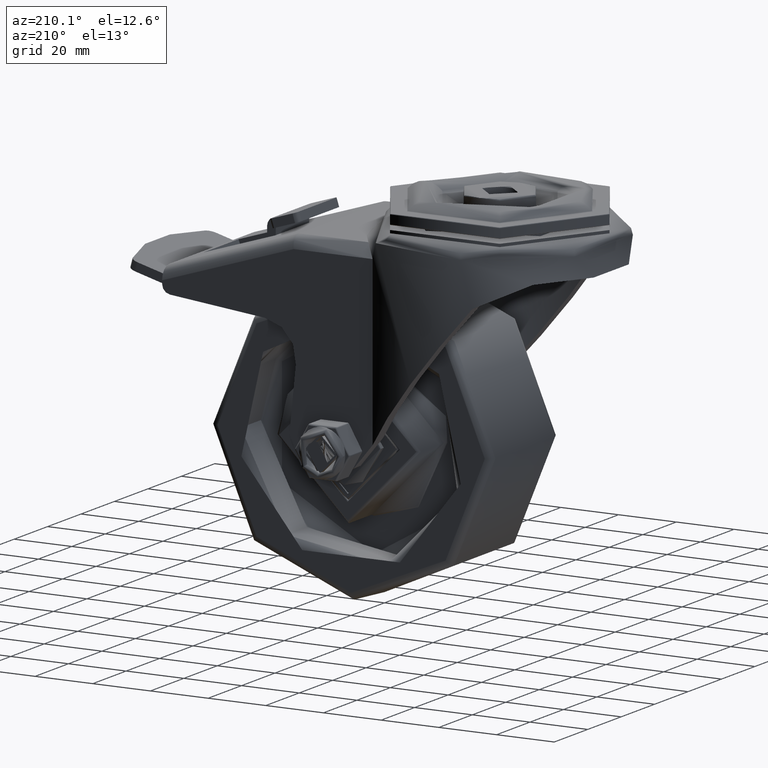
[diagram: clean part render]
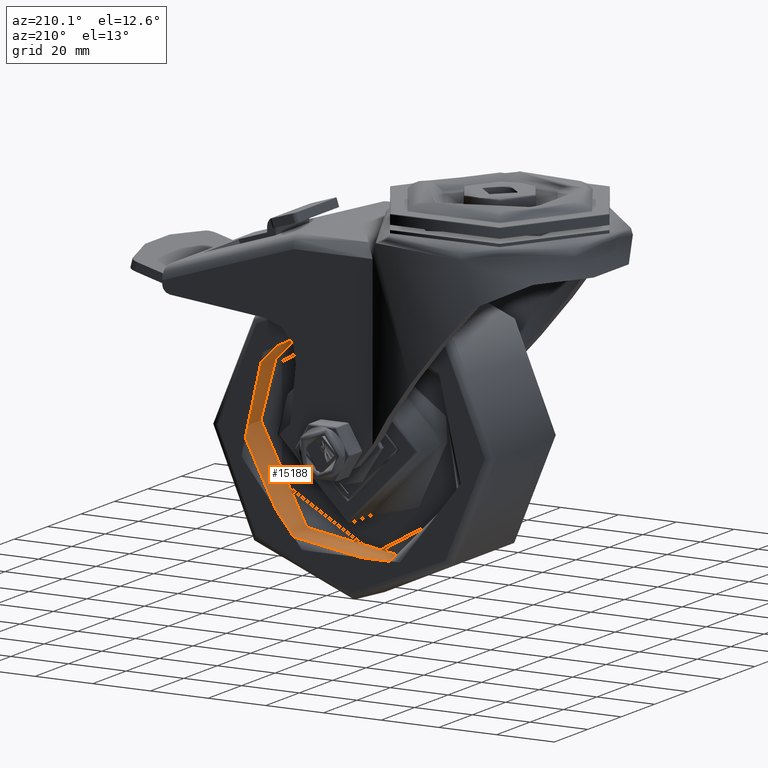
[diagram: same view with one face highlighted and labeled with its STEP entity id]
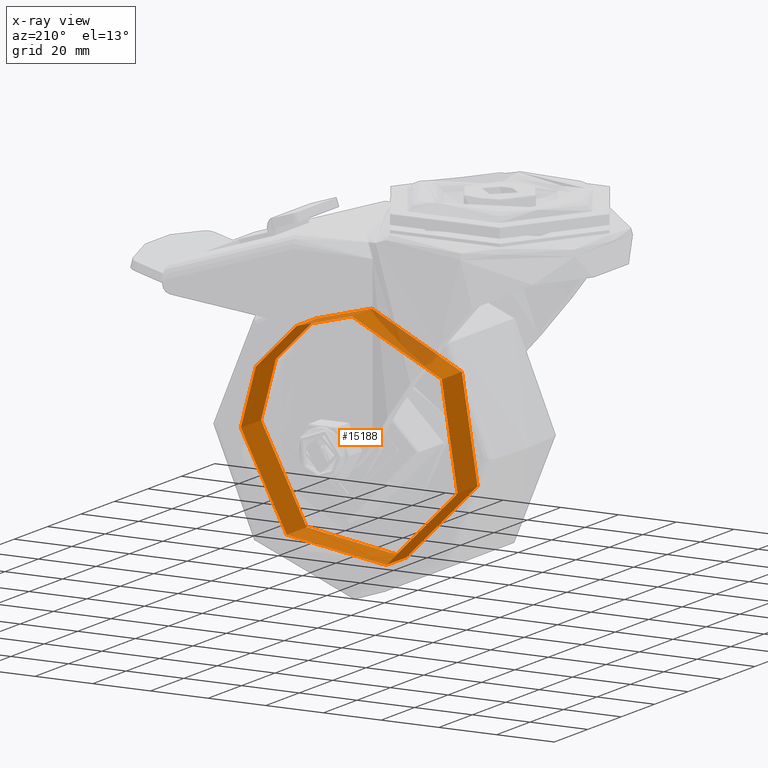
[diagram: x-ray of the same camera — body ghosted, the highlighted face saturated]
A machine part, auxiliary view. The second image highlights one B-rep face of the part: STEP entity #15188.
The next image is the same camera in x-ray: the body ghosted, the highlighted face saturated — about 8% of this face is hidden behind the body in this view.
In plain terms, the highlighted cylindrical surface (bore or boss wall) has radius 38.5 mm, axis along (-0, 1, 0).
Its self-contained STEP definition (entity closure, byte-faithful):
#2073=FACE_OUTER_BOUND('',#2992,.T.);
#2992=EDGE_LOOP('',(#12001,#12002,#12003,#12004,#12005,#12006));
#4153=LINE('',#24718,#5212);
#5212=VECTOR('',#19459,38.5);
#6083=CIRCLE('',#16647,38.5);
#6084=CIRCLE('',#16648,38.5);
#6144=CIRCLE('',#16729,38.5);
#6145=CIRCLE('',#16730,38.5);
#6986=VERTEX_POINT('',#24554);
#6987=VERTEX_POINT('',#24555);
#7030=VERTEX_POINT('',#24712);
#7031=VERTEX_POINT('',#24714);
#8768=EDGE_CURVE('',#6986,#6987,#6083,.T.);
#8769=EDGE_CURVE('',#6987,#6986,#6084,.T.);
#8835=EDGE_CURVE('',#7030,#7031,#6144,.T.);
#8836=EDGE_CURVE('',#7031,#7030,#6145,.T.);
#8837=EDGE_CURVE('',#7031,#6986,#4153,.T.);
#12001=ORIENTED_EDGE('',*,*,#8836,.F.);
#12002=ORIENTED_EDGE('',*,*,#8837,.T.);
#12003=ORIENTED_EDGE('',*,*,#8768,.T.);
#12004=ORIENTED_EDGE('',*,*,#8769,.T.);
#12005=ORIENTED_EDGE('',*,*,#8837,.F.);
#12006=ORIENTED_EDGE('',*,*,#8835,.F.);
#14725=CYLINDRICAL_SURFACE('',#16731,38.5);
#15188=ADVANCED_FACE('',(#2073),#14725,.F.);
#16647=AXIS2_PLACEMENT_3D('',#24556,#19283,#19284);
#16648=AXIS2_PLACEMENT_3D('',#24557,#19285,#19286);
#16729=AXIS2_PLACEMENT_3D('',#24715,#19453,#19454);
#16730=AXIS2_PLACEMENT_3D('',#24716,#19455,#19456);
#16731=AXIS2_PLACEMENT_3D('',#24717,#19457,#19458);
#19283=DIRECTION('center_axis',(-3.49148336110938E-15,1.,0.));
#19284=DIRECTION('ref_axis',(-1.,-3.49148336110938E-15,0.));
#19285=DIRECTION('center_axis',(-3.49148336110938E-15,1.,0.));
#19286=DIRECTION('ref_axis',(-1.,-3.49148336110938E-15,0.));
#19453=DIRECTION('center_axis',(-3.49148336110938E-15,1.,0.));
#19454=DIRECTION('ref_axis',(-1.,-3.49148336110938E-15,0.));
#19455=DIRECTION('center_axis',(-3.49148336110938E-15,1.,0.));
#19456=DIRECTION('ref_axis',(-1.,-3.49148336110938E-15,0.));
#19457=DIRECTION('center_axis',(-3.49148336110938E-15,1.,0.));
#19458=DIRECTION('ref_axis',(-1.,-3.49148336110938E-15,0.));
#19459=DIRECTION('',(-3.49148336110938E-15,1.,0.));
#24554=CARTESIAN_POINT('',(38.5,19.5000000000001,4.71489017671731E-15));
#24555=CARTESIAN_POINT('',(-6.33690353649157E-14,19.5,38.5));
#24556=CARTESIAN_POINT('Origin',(-6.8083925541633E-14,19.5,0.));
#24557=CARTESIAN_POINT('Origin',(-6.8083925541633E-14,19.5,0.));
#24712=CARTESIAN_POINT('',(-2.14712350316031E-14,7.50000000000002,38.5));
#24714=CARTESIAN_POINT('',(38.5,7.50000000000015,4.71489017671731E-15));
#24715=CARTESIAN_POINT('Origin',(-2.61861252083204E-14,7.50000000000002,
0.));
#24716=CARTESIAN_POINT('Origin',(-2.61861252083204E-14,7.50000000000002,
0.));
#24717=CARTESIAN_POINT('Origin',(-4.71350253749767E-14,13.5,0.));
#24718=CARTESIAN_POINT('',(38.5,13.5000000000001,-4.71489017671731E-15));